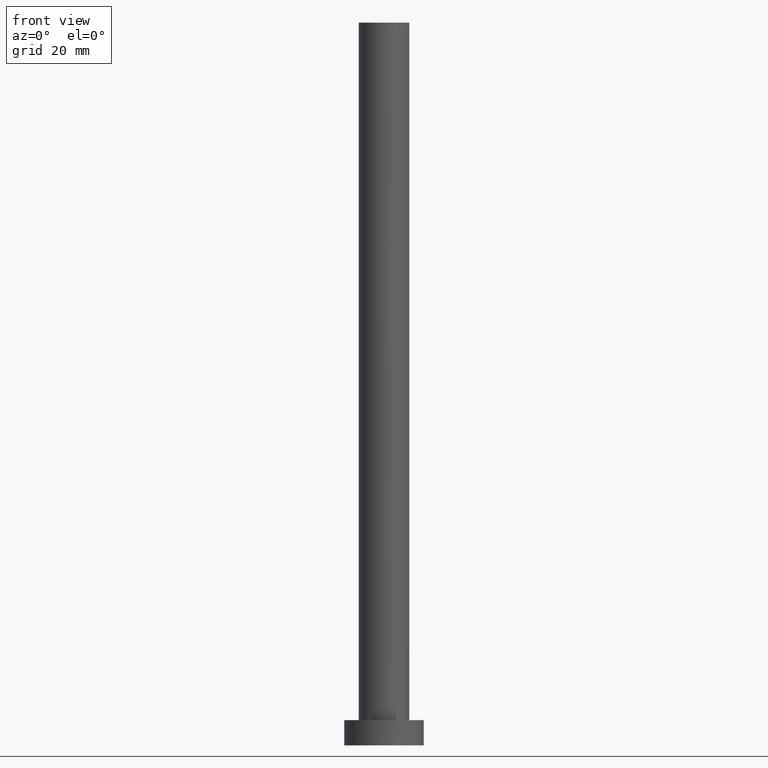
[diagram: clean part render]
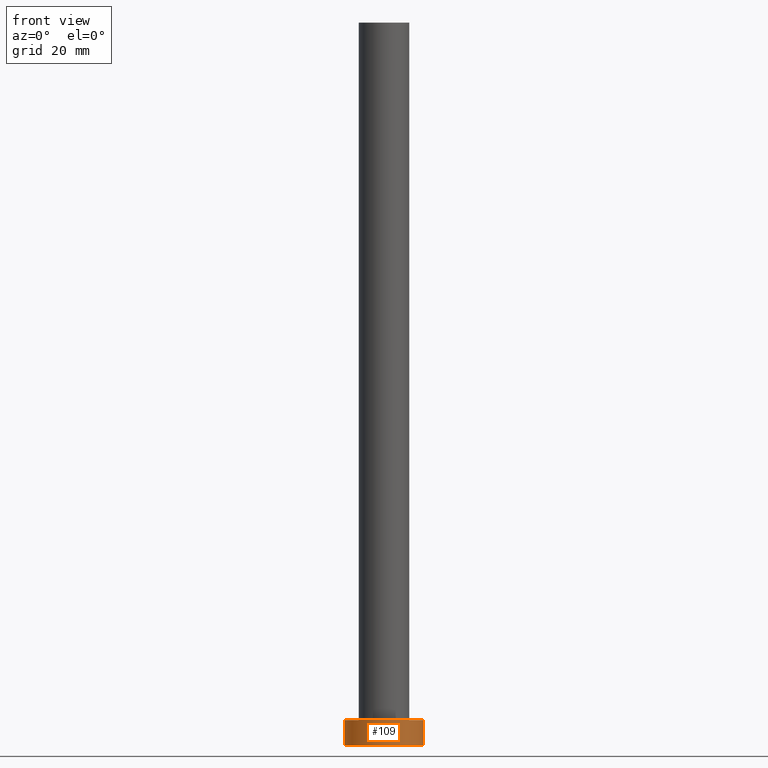
[diagram: same view with one face highlighted and labeled with its STEP entity id]
A machine part, front view. The second image highlights one B-rep face of the part: STEP entity #109.
In plain terms, the highlighted cylindrical surface (partial cylindrical patch) has radius 11 mm, axis along (-0, -0, -1).
Its self-contained STEP definition (entity closure, byte-faithful):
#3 = CIRCLE ( 'NONE', #31, 11.00000000000000000 ) ;
#5 = EDGE_CURVE ( 'NONE', #197, #104, #47, .T. ) ;
#6 = CARTESIAN_POINT ( 'NONE',  ( 0.000000000000000000, 0.000000000000000000, 7.000000000000000000 ) ) ;
#17 = ORIENTED_EDGE ( 'NONE', *, *, #212, .F. ) ;
#26 = CARTESIAN_POINT ( 'NONE',  ( 0.000000000000000000, 0.000000000000000000, 0.000000000000000000 ) ) ;
#29 = FACE_OUTER_BOUND ( 'NONE', #139, .T. ) ;
#31 = AXIS2_PLACEMENT_3D ( 'NONE', #26, #143, #141 ) ;
#36 = EDGE_CURVE ( 'NONE', #232, #104, #3, .T. ) ;
#38 = CARTESIAN_POINT ( 'NONE',  ( 0.000000000000000000, 0.000000000000000000, 7.000000000000000000 ) ) ;
#47 = LINE ( 'NONE', #254, #96 ) ;
#54 = DIRECTION ( 'NONE',  ( 0.000000000000000000, 0.000000000000000000, 1.000000000000000000 ) ) ;
#68 = CARTESIAN_POINT ( 'NONE',  ( 11.00000000000000000, 1.347111479062088405E-15, 0.000000000000000000 ) ) ;
#72 = CARTESIAN_POINT ( 'NONE',  ( -11.00000000000000000, 0.000000000000000000, 7.000000000000000000 ) ) ;
#78 = CIRCLE ( 'NONE', #226, 11.00000000000000000 ) ;
#79 = CARTESIAN_POINT ( 'NONE',  ( -11.00000000000000000, 0.000000000000000000, 7.000000000000000000 ) ) ;
#85 = ORIENTED_EDGE ( 'NONE', *, *, #36, .T. ) ;
#89 = DIRECTION ( 'NONE',  ( -0.000000000000000000, -0.000000000000000000, -1.000000000000000000 ) ) ;
#96 = VECTOR ( 'NONE', #161, 1000.000000000000000 ) ;
#98 = ORIENTED_EDGE ( 'NONE', *, *, #181, .T. ) ;
#104 = VERTEX_POINT ( 'NONE', #68 ) ;
#109 = ADVANCED_FACE ( 'NONE', ( #29 ), #192, .T. ) ;
#138 = VERTEX_POINT ( 'NONE', #72 ) ;
#139 = EDGE_LOOP ( 'NONE', ( #224, #17, #98, #85 ) ) ;
#141 = DIRECTION ( 'NONE',  ( 1.000000000000000000, 0.000000000000000000, 0.000000000000000000 ) ) ;
#143 = DIRECTION ( 'NONE',  ( 0.000000000000000000, 0.000000000000000000, 1.000000000000000000 ) ) ;
#148 = AXIS2_PLACEMENT_3D ( 'NONE', #6, #89, #165 ) ;
#161 = DIRECTION ( 'NONE',  ( -0.000000000000000000, -0.000000000000000000, -1.000000000000000000 ) ) ;
#165 = DIRECTION ( 'NONE',  ( -1.000000000000000000, 0.000000000000000000, 0.000000000000000000 ) ) ;
#181 = EDGE_CURVE ( 'NONE', #138, #232, #198, .T. ) ;
#192 = CYLINDRICAL_SURFACE ( 'NONE', #148, 11.00000000000000000 ) ;
#193 = DIRECTION ( 'NONE',  ( 1.000000000000000000, 0.000000000000000000, 0.000000000000000000 ) ) ;
#196 = CARTESIAN_POINT ( 'NONE',  ( -11.00000000000000000, 0.000000000000000000, 0.000000000000000000 ) ) ;
#197 = VERTEX_POINT ( 'NONE', #237 ) ;
#198 = LINE ( 'NONE', #79, #208 ) ;
#208 = VECTOR ( 'NONE', #234, 1000.000000000000000 ) ;
#212 = EDGE_CURVE ( 'NONE', #138, #197, #78, .T. ) ;
#224 = ORIENTED_EDGE ( 'NONE', *, *, #5, .F. ) ;
#226 = AXIS2_PLACEMENT_3D ( 'NONE', #38, #54, #193 ) ;
#232 = VERTEX_POINT ( 'NONE', #196 ) ;
#234 = DIRECTION ( 'NONE',  ( -0.000000000000000000, -0.000000000000000000, -1.000000000000000000 ) ) ;
#237 = CARTESIAN_POINT ( 'NONE',  ( 11.00000000000000000, 1.347111479062088405E-15, 7.000000000000000000 ) ) ;
#254 = CARTESIAN_POINT ( 'NONE',  ( 11.00000000000000000, 1.347111479062088405E-15, 7.000000000000000000 ) ) ;